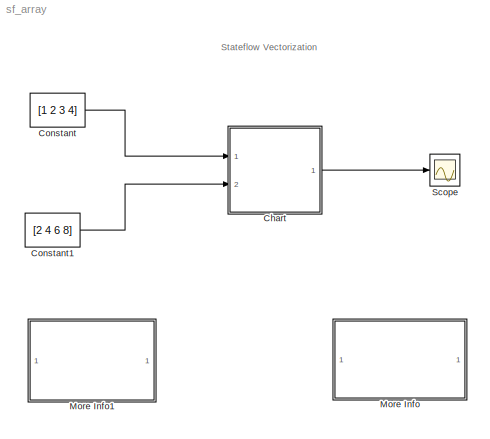
MODEL sf_array
KIND model
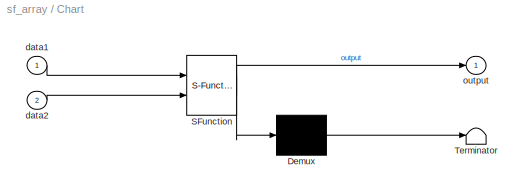
BLOCK [SubSystem] Chart
  MaskDescription = Stateflow diagram
  MaskDisplay = plot(sf('Private','sfblk','xIcon'),sf('Private','sfblk','yIcon'));text(0.5,0,sf('Private', 'sfblk', 'tIcon'),'HorizontalAl','Center','VerticalAl','Bottom');
  MaskIconFrame = off
  MaskIconOpaque = off
  MaskIconRotate = none
  MaskIconUnits = autoscale
  MaskSelfModifiable = on
  MaskType = Stateflow
  MinAlgLoopOccurrences = off
  Ports = [2, 1]
  PropExecContextAcrossSSBoundary = on
  RTWSystemCode = Auto
  TreatAsAtomicUnit = off
BLOCK [Demux] Chart/ Demux 
  Outputs = 1
  Ports = [1, 1]
BLOCK [S-Function] Chart/ SFunction 
  FunctionName = sf_sfun
  PortCounts = [2 2]
  Ports = [2, 2]
  Tag = Stateflow S-Function sf_array 1
BLOCK [Terminator] Chart/ Terminator 
BLOCK [Inport] Chart/data1
  IconDisplay = Port number
  LatchInput = off
  Port = 1
BLOCK [Inport] Chart/data2
  IconDisplay = Port number
  LatchInput = off
  Port = 2
BLOCK [Outport] Chart/output
  IconDisplay = Port number
BLOCK [Constant] Constant
  Value = [1 2 3 4]
BLOCK [Constant] Constant1
  Value = [2 4 6 8]
BLOCK [SubSystem] More Info
  MaskDisplay = disp('Double click\\nhere for\\ninformation on\\nthis demonstration')
  MaskIconFrame = on
  MaskIconOpaque = on
  MaskIconRotate = none
  MaskIconUnits = autoscale
  MinAlgLoopOccurrences = off
  Ports = []
  PropExecContextAcrossSSBoundary = on
  RTWSystemCode = Auto
  TreatAsAtomicUnit = off
BLOCK [SubSystem] More Info1
  MaskDisplay = disp('Double click\\nhere for<path> Help')
  MaskIconFrame = on
  MaskIconOpaque = on
  MaskIconRotate = none
  MaskIconUnits = autoscale
  MinAlgLoopOccurrences = off
  OpenFcn = simcad(bdroot);
  Ports = []
  PropExecContextAcrossSSBoundary = on
  RTWSystemCode = Auto
  TreatAsAtomicUnit = off
BLOCK [Scope] Scope
  DataFormat = StructureWithTime
  LimitDataPoints = off
  NumInputPorts = 1
  Ports = [1]
  YMax = 55
  YMin = 0
ANNOTATION (root): Stateflow Vectorization
ANNOTATION More Info: Stateflow has the ability to vectorize the data inputs and perform 1-D array manipulations. In this example, \nthe following MATLAB code is implemented:\n\ndata1=[1 2 3 4];\ndata2=[2 4 6 8];\noutput=data1.*data2+1;\n\nNotice the array operator '.' placed before the multiplication sign. Stateflow also implements this vectorization\nwhich eliminates the need for DO or FOR loops. The reult is a faste...<+69ch>
ANNOTATION More Info: Vectorization
LINE Chart/ Demux :1 -> Chart/ Terminator :1
LINE Chart/ SFunction :1 -> Chart/ Demux :1
LINE Chart/ SFunction :2 -> Chart/output:1
LINE Chart/data1:1 -> Chart/ SFunction :1
LINE Chart/data2:1 -> Chart/ SFunction :2
LINE Chart:1 -> Scope:1
LINE Constant1:1 -> Chart:2
LINE Constant:1 -> Chart:1
CHART Chart states=1 transitions=1
  STATE_LABEL 'Equivalent MATLAB code:\\n\\ndata1=[1 2 3 4];\\ndata2=[2 4 6 8];\\noutput=data1.*data2+1;'
note: 1 file-system path scrubbed to <path> (not preserved elsewhere — flat text is the only slx artifact)
